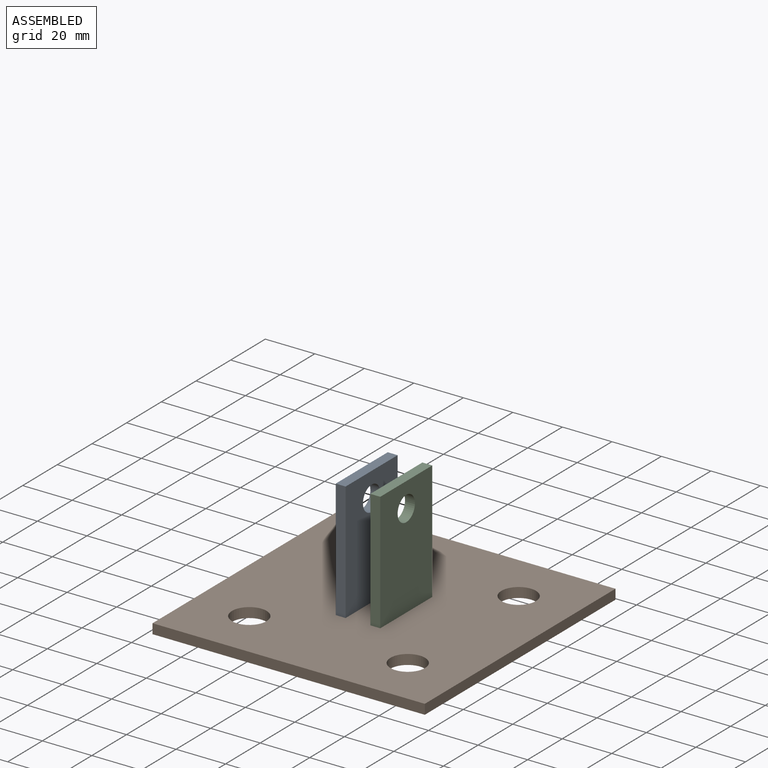
[diagram: assembled view]
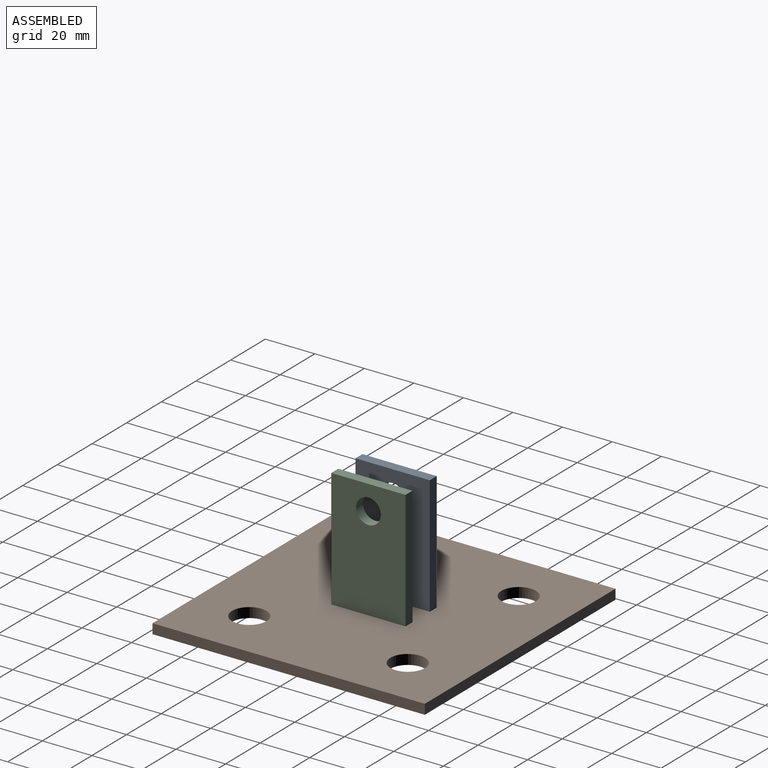
[diagram: assembled view, second angle]
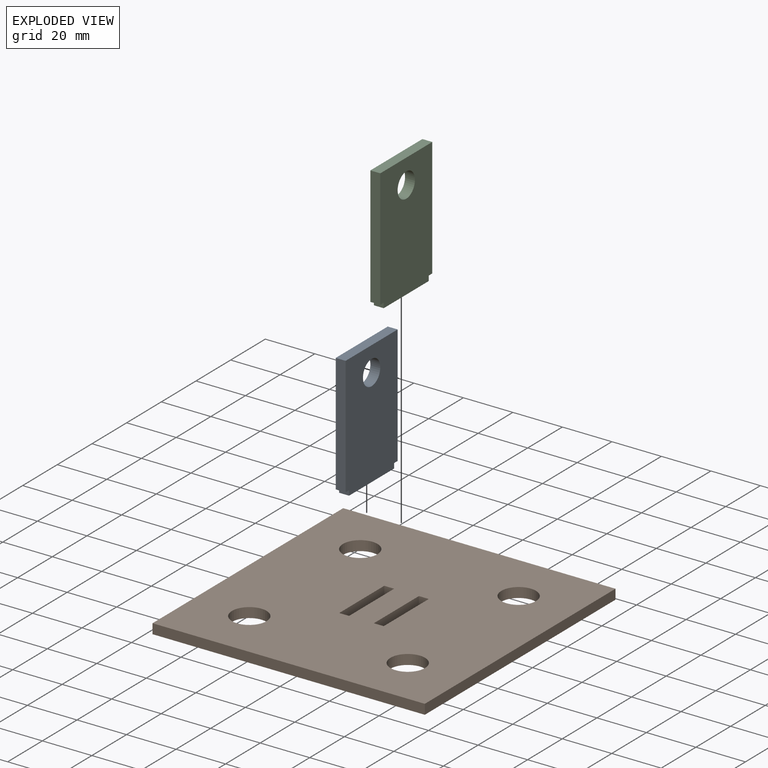
[diagram: exploded view]
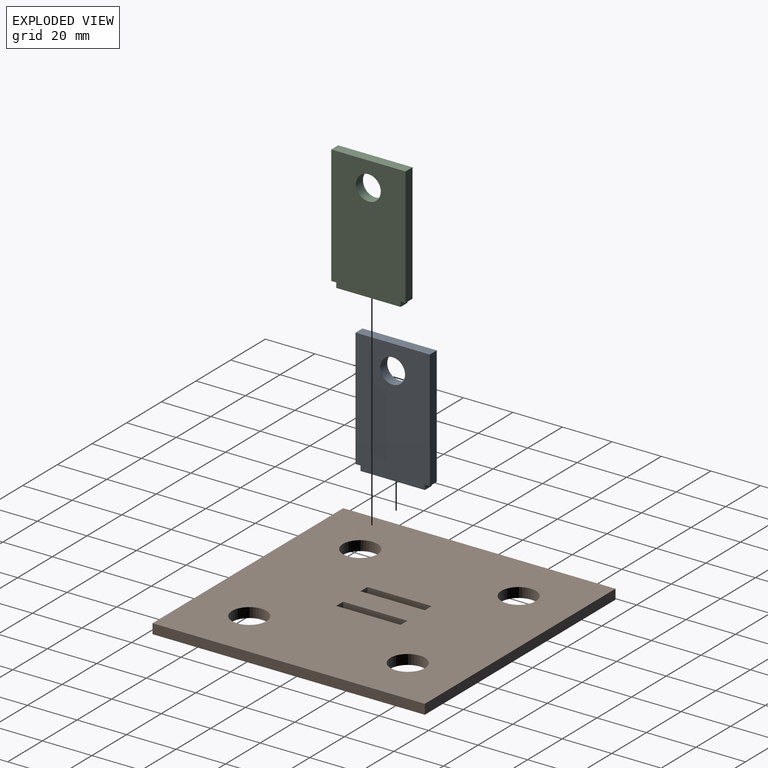
[diagram: exploded view, second angle]
ASSEMBLY  parts=3 mates=2
PART A: 11 faces, bbox 4x30x50 mm
  f0: plane 4x2mm, normal (0,0,-1), area 8mm2, adj f1,f3,f4,f8
  f1: plane 50x30mm, normal (-1,0,0), area 1413.5mm2, adj f0,f2,f4,f5,f6,f7,f8,f9
  f2: plane 48x4mm, normal (0,-1,0), area 192mm2, adj f1,f3,f5,f6
  f3: plane 50x30mm, normal (1,0,0), area 1413.5mm2, adj f0,f2,f4,f5,f6,f7,f8,f9
  f4: plane 48x4mm, normal (0,1,0), area 192mm2, adj f0,f1,f3,f5
  f5: plane 30x4mm, normal (0,0,1), area 120mm2, adj f1,f2,f3,f4
  f6: plane 4x2mm, normal (0,0,-1), area 8mm2, adj f1,f2,f3,f7
  f7: plane 4x2mm, normal (0,-1,0), area 8mm2, adj f1,f3,f6,f9
  f8: plane 4x2mm, normal (0,1,0), area 8mm2, adj f0,f1,f3,f9
  f9: plane 26x4mm, normal (0,0,-1), area 104mm2, adj f1,f3,f7,f8
  f10: cylinder r=5mm len=10mm, axis (-1,0,0), area 125.7mm2, adj f1,f3
PART B: 18 faces, bbox 110x110x4 mm
  f0: plane 110x4mm, normal (0,1,0), area 440mm2, adj f1,f15,f16,f17
  f1: plane 110x4mm, normal (-1,0,0), area 440mm2, adj f0,f2,f16,f17
  f2: plane 110x4mm, normal (0,-1,0), area 440mm2, adj f1,f15,f16,f17
  f3: plane 26x4mm, normal (-1,0,0), area 104mm2, adj f4,f9,f16,f17
  f4: plane 4x4mm, normal (0,1,0), area 16mm2, adj f3,f5,f16,f17
  f5: plane 26x4mm, normal (1,0,0), area 104mm2, adj f4,f9,f16,f17
  f6: plane 4x4mm, normal (0,1,0), area 16mm2, adj f7,f14,f16,f17
  f7: plane 26x4mm, normal (1,0,0), area 104mm2, adj f6,f8,f16,f17
  f8: plane 4x4mm, normal (0,-1,0), area 16mm2, adj f7,f14,f16,f17
  f9: plane 4x4mm, normal (0,-1,0), area 16mm2, adj f3,f5,f16,f17
  f10: cylinder r=7mm len=14mm, axis (0,0,-1), area 175.9mm2, adj f16,f17
  f11: cylinder r=7mm len=14mm, axis (0,0,-1), area 175.9mm2, adj f16,f17
  f12: cylinder r=7mm len=14mm, axis (0,0,-1), area 175.9mm2, adj f16,f17
  f13: cylinder r=7mm len=14mm, axis (0,0,-1), area 175.9mm2, adj f16,f17
  f14: plane 26x4mm, normal (-1,0,0), area 104mm2, adj f6,f8,f16,f17
  f15: plane 110x4mm, normal (1,0,0), area 440mm2, adj f0,f2,f16,f17
  f16: plane 110x110mm, normal (0,0,1), area 11276.2mm2, adj f0,f1,f2,f3,f4,f5,f6,f7
  f17: plane 110x110mm, normal (0,0,-1), area 11276.2mm2, adj f0,f1,f2,f3,f4,f5,f6,f7
PART C: same geometry as A
PLACE A t=(-14,0,0)mm
PLACE B at identity fixed
PLACE C at identity
MATE slider B.f16 <-> C.f0  axis (0,0,1) through (9,13,4)mm
MATE slider B.f16 <-> A.f0  axis (0,0,1) through (-9,13,4)mm
